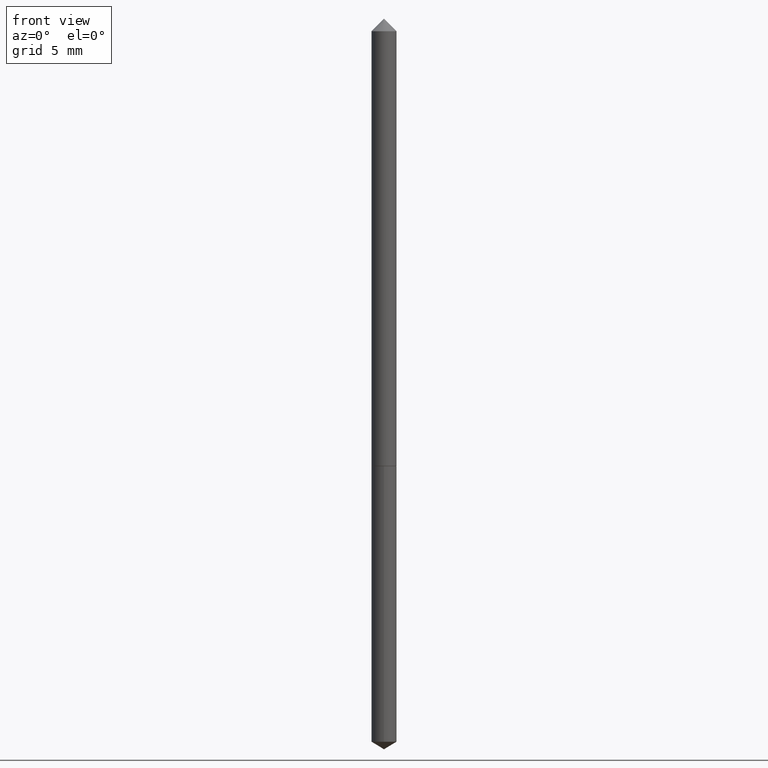
[diagram: clean part render]
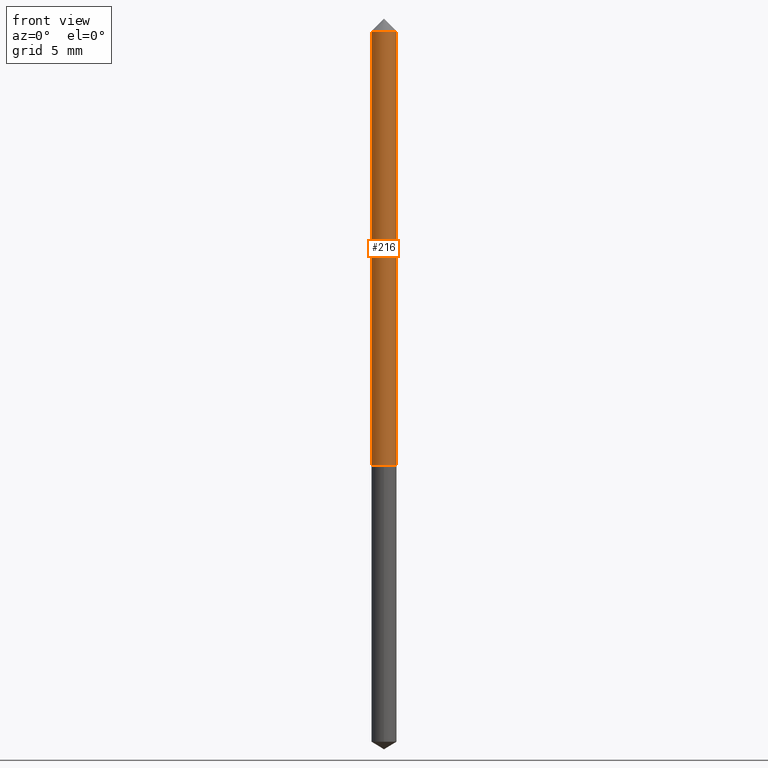
[diagram: same view with one face highlighted and labeled with its STEP entity id]
A machine part, front view. The second image highlights one B-rep face of the part: STEP entity #216.
In plain terms, the highlighted cylindrical surface (edge-blend (fillet) strip) has radius 0.6502 mm, axis along (-0, 0, 1).
Its self-contained STEP definition (entity closure, byte-faithful):
#4 = CARTESIAN_POINT ( 'NONE',  ( -0.02560000000000000817, -1.474896241959955932E-15, -0.03125000000000020123 ) ) ;
#6 = CARTESIAN_POINT ( 'NONE',  ( 0.000000000000000000, 0.000000000000000000, 0.000000000000000000 ) ) ;
#9 = DIRECTION ( 'NONE',  ( 1.000000000000000000, -6.982962677686266711E-15, 4.876176775795935232E-29 ) ) ;
#12 = AXIS2_PLACEMENT_3D ( 'NONE', #6, #313, #9 ) ;
#16 = CARTESIAN_POINT ( 'NONE',  ( 0.02560000000000000817, -2.878726363876175249E-16, -0.03125000000000020123 ) ) ;
#26 = VERTEX_POINT ( 'NONE', #4 ) ;
#33 = AXIS2_PLACEMENT_3D ( 'NONE', #290, #148, #181 ) ;
#35 = CARTESIAN_POINT ( 'NONE',  ( -0.02560000000000011572, -3.022582632435652044E-15, -0.9177999999999998382 ) ) ;
#47 = VERTEX_POINT ( 'NONE', #35 ) ;
#57 = ORIENTED_EDGE ( 'NONE', *, *, #311, .F. ) ;
#73 = DIRECTION ( 'NONE',  ( -2.445468806185136597E-29, 3.491481338843145583E-15, 1.000000000000000000 ) ) ;
#95 = LINE ( 'NONE', #125, #238 ) ;
#125 = CARTESIAN_POINT ( 'NONE',  ( 0.02560000000000006368, -1.787638445487688680E-16, 1.248301254603762494E-30 ) ) ;
#127 = VECTOR ( 'NONE', #269, 39.37007874015748143 ) ;
#135 = EDGE_CURVE ( 'NONE', #47, #26, #184, .T. ) ;
#148 = DIRECTION ( 'NONE',  ( -2.445468806185136597E-29, 3.491481338843145583E-15, 1.000000000000000000 ) ) ;
#158 = ORIENTED_EDGE ( 'NONE', *, *, #234, .T. ) ;
#168 = CIRCLE ( 'NONE', #285, 0.02560000000000000817 ) ;
#179 = CARTESIAN_POINT ( 'NONE',  ( 0.02560000000000011572, -3.383245417339008023E-15, -0.9177999999999998382 ) ) ;
#181 = DIRECTION ( 'NONE',  ( 1.000000000000000000, -6.982962677686270655E-15, 0.000000000000000000 ) ) ;
#183 = VERTEX_POINT ( 'NONE', #179 ) ;
#184 = LINE ( 'NONE', #292, #127 ) ;
#192 = ORIENTED_EDGE ( 'NONE', *, *, #227, .T. ) ;
#201 = CYLINDRICAL_SURFACE ( 'NONE', #12, 0.02560000000000006368 ) ;
#216 = ADVANCED_FACE ( 'NONE', ( #241 ), #201, .T. ) ;
#227 = EDGE_CURVE ( 'NONE', #183, #233, #95, .T. ) ;
#233 = VERTEX_POINT ( 'NONE', #16 ) ;
#234 = EDGE_CURVE ( 'NONE', #47, #183, #249, .T. ) ;
#238 = VECTOR ( 'NONE', #288, 39.37007874015748143 ) ;
#241 = FACE_OUTER_BOUND ( 'NONE', #266, .T. ) ;
#248 = CARTESIAN_POINT ( 'NONE',  ( 7.642090019328601786E-31, -1.091087918388490144E-16, -0.03125000000000020123 ) ) ;
#249 = CIRCLE ( 'NONE', #33, 0.02560000000000011572 ) ;
#266 = EDGE_LOOP ( 'NONE', ( #321, #158, #192, #57 ) ) ;
#269 = DIRECTION ( 'NONE',  ( -2.445468806185136877E-29, 3.491481338843145188E-15, 1.000000000000000000 ) ) ;
#285 = AXIS2_PLACEMENT_3D ( 'NONE', #248, #73, #298 ) ;
#288 = DIRECTION ( 'NONE',  ( -2.445468806185136877E-29, 3.491481338843145188E-15, 1.000000000000000000 ) ) ;
#290 = CARTESIAN_POINT ( 'NONE',  ( 2.244451270316717701E-29, -3.204481572790238563E-15, -0.9177999999999998382 ) ) ;
#292 = CARTESIAN_POINT ( 'NONE',  ( -0.02560000000000006368, 1.818989403545861000E-16, -1.259247383105259117E-30 ) ) ;
#298 = DIRECTION ( 'NONE',  ( 1.000000000000000000, -6.982962677686267499E-15, 0.000000000000000000 ) ) ;
#311 = EDGE_CURVE ( 'NONE', #26, #233, #168, .T. ) ;
#313 = DIRECTION ( 'NONE',  ( -2.445468806185136597E-29, 3.491481338843145583E-15, 1.000000000000000000 ) ) ;
#321 = ORIENTED_EDGE ( 'NONE', *, *, #135, .F. ) ;